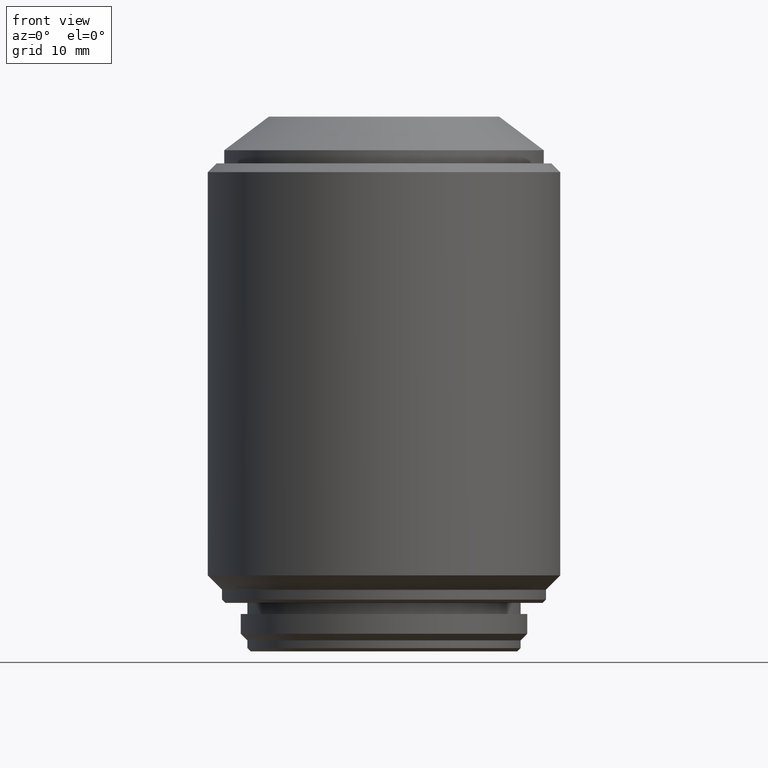
[diagram: clean part render]
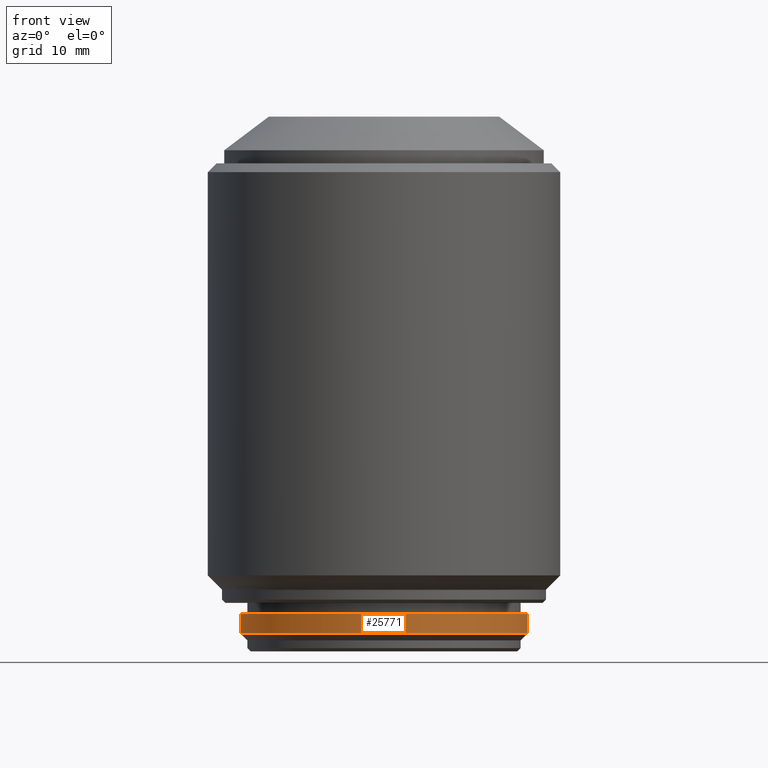
[diagram: same view with one face highlighted and labeled with its STEP entity id]
A machine part, front view. The second image highlights one B-rep face of the part: STEP entity #25771.
In plain terms, the highlighted cylindrical surface (partial cylindrical patch) has radius 13 mm, axis along (0, 0, -1).
Its self-contained STEP definition (entity closure, byte-faithful):
#541 = EDGE_CURVE ( 'NONE', #21153, #5193, #23261, .T. ) ;
#582 = CARTESIAN_POINT ( 'NONE',  ( 0.000000000000000000, 0.000000000000000000, 1.600000000000000089 ) ) ;
#588 = CARTESIAN_POINT ( 'NONE',  ( -13.00000000000000000, 0.000000000000000000, 4.400000000000000355 ) ) ;
#790 = CIRCLE ( 'NONE', #20476, 13.00000000000000000 ) ;
#862 = DIRECTION ( 'NONE',  ( 0.000000000000000000, 0.000000000000000000, 1.000000000000000000 ) ) ;
#868 = LINE ( 'NONE', #588, #20569 ) ;
#1357 = DIRECTION ( 'NONE',  ( -1.000000000000000000, 0.000000000000000000, 0.000000000000000000 ) ) ;
#2526 = CARTESIAN_POINT ( 'NONE',  ( 13.00000000000000000, 1.592040838891559095E-15, 3.399999999999999911 ) ) ;
#2565 = CARTESIAN_POINT ( 'NONE',  ( 13.00000000000000000, 1.592040838891559095E-15, 4.400000000000000355 ) ) ;
#4685 = CARTESIAN_POINT ( 'NONE',  ( 0.000000000000000000, 0.000000000000000000, 3.399999999999999911 ) ) ;
#5193 = VERTEX_POINT ( 'NONE', #14702 ) ;
#7005 = DIRECTION ( 'NONE',  ( 0.000000000000000000, 0.000000000000000000, -1.000000000000000000 ) ) ;
#7511 = ORIENTED_EDGE ( 'NONE', *, *, #26453, .F. ) ;
#9077 = ORIENTED_EDGE ( 'NONE', *, *, #17252, .T. ) ;
#9160 = LINE ( 'NONE', #2565, #15428 ) ;
#9260 = DIRECTION ( 'NONE',  ( -1.000000000000000000, 0.000000000000000000, 0.000000000000000000 ) ) ;
#9454 = ORIENTED_EDGE ( 'NONE', *, *, #541, .T. ) ;
#10243 = CARTESIAN_POINT ( 'NONE',  ( 0.000000000000000000, 0.000000000000000000, 4.400000000000000355 ) ) ;
#10341 = EDGE_LOOP ( 'NONE', ( #26649, #7511, #9077, #9454 ) ) ;
#10853 = DIRECTION ( 'NONE',  ( 0.000000000000000000, 0.000000000000000000, 1.000000000000000000 ) ) ;
#12408 = FACE_OUTER_BOUND ( 'NONE', #10341, .T. ) ;
#12549 = CYLINDRICAL_SURFACE ( 'NONE', #15411, 13.00000000000000000 ) ;
#13163 = AXIS2_PLACEMENT_3D ( 'NONE', #582, #862, #22679 ) ;
#14702 = CARTESIAN_POINT ( 'NONE',  ( 13.00000000000000000, 0.000000000000000000, 1.600000000000000089 ) ) ;
#15411 = AXIS2_PLACEMENT_3D ( 'NONE', #10243, #21308, #1357 ) ;
#15428 = VECTOR ( 'NONE', #7005, 1000.000000000000000 ) ;
#16336 = VERTEX_POINT ( 'NONE', #19746 ) ;
#16367 = VERTEX_POINT ( 'NONE', #2526 ) ;
#17252 = EDGE_CURVE ( 'NONE', #16336, #21153, #868, .T. ) ;
#19746 = CARTESIAN_POINT ( 'NONE',  ( -13.00000000000000000, 0.000000000000000000, 3.399999999999999911 ) ) ;
#20476 = AXIS2_PLACEMENT_3D ( 'NONE', #4685, #10853, #9260 ) ;
#20569 = VECTOR ( 'NONE', #24837, 1000.000000000000000 ) ;
#21153 = VERTEX_POINT ( 'NONE', #25569 ) ;
#21308 = DIRECTION ( 'NONE',  ( 0.000000000000000000, 0.000000000000000000, -1.000000000000000000 ) ) ;
#22679 = DIRECTION ( 'NONE',  ( -1.000000000000000000, 0.000000000000000000, 0.000000000000000000 ) ) ;
#23261 = CIRCLE ( 'NONE', #13163, 13.00000000000000000 ) ;
#24837 = DIRECTION ( 'NONE',  ( 0.000000000000000000, 0.000000000000000000, -1.000000000000000000 ) ) ;
#25569 = CARTESIAN_POINT ( 'NONE',  ( -13.00000000000000000, 1.592040838891559095E-15, 1.600000000000000089 ) ) ;
#25771 = ADVANCED_FACE ( 'NONE', ( #12408 ), #12549, .T. ) ;
#26206 = EDGE_CURVE ( 'NONE', #16367, #5193, #9160, .T. ) ;
#26453 = EDGE_CURVE ( 'NONE', #16336, #16367, #790, .T. ) ;
#26649 = ORIENTED_EDGE ( 'NONE', *, *, #26206, .F. ) ;